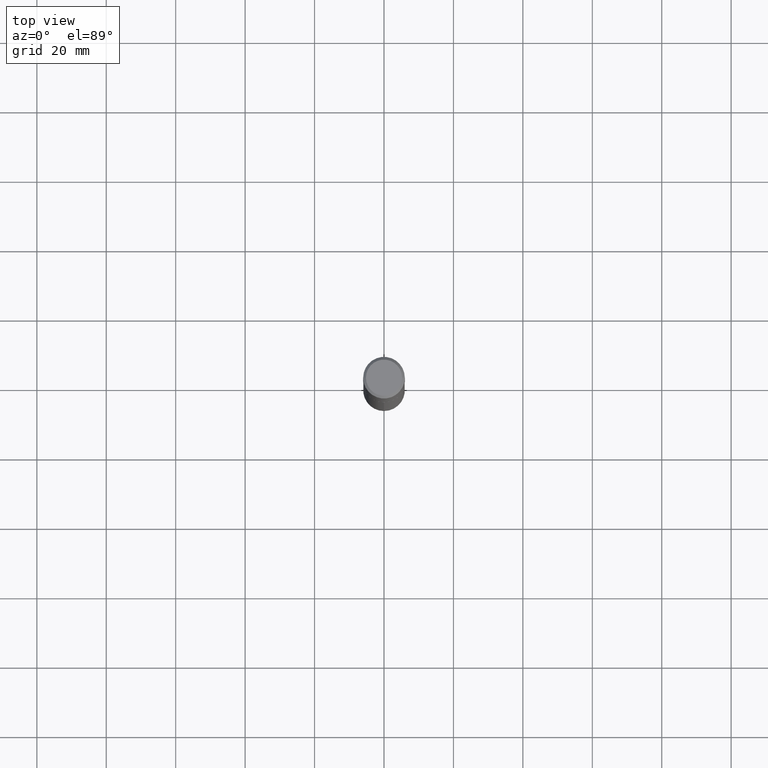
[diagram: clean part render]
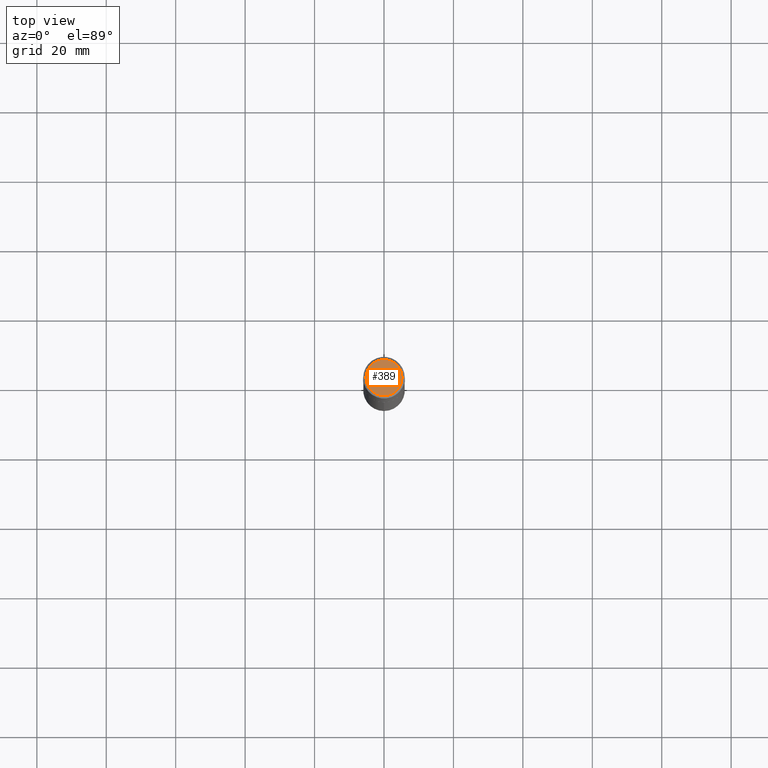
[diagram: same view with one face highlighted and labeled with its STEP entity id]
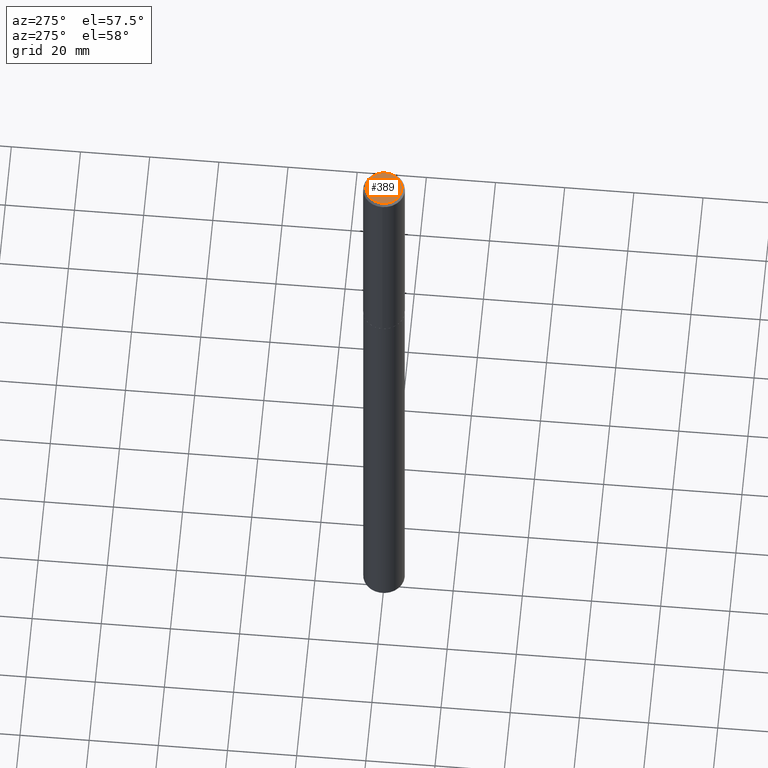
[diagram: same view with one face highlighted and labeled with its STEP entity id]
A machine part, top view. The second image highlights one B-rep face of the part: STEP entity #389.
A second angle (auxiliary view) of the same face is appended — the face is thin or edge-on in the first view.
In plain terms, the highlighted planar face has unit normal (0, -0, -1).
Its self-contained STEP definition (entity closure, byte-faithful):
#4 = FACE_OUTER_BOUND ( 'NONE', #295, .T. ) ;
#48 = CARTESIAN_POINT ( 'NONE',  ( -0.2049499999999999933, 1.485712596711223663E-15, 4.818985154634640807E-18 ) ) ;
#54 = DIRECTION ( 'NONE',  ( 2.438088387897960049E-29, -3.491481338843145188E-15, -1.000000000000000000 ) ) ;
#81 = CARTESIAN_POINT ( 'NONE',  ( -1.178467787315321149E-46, 1.682539673960460649E-32, 4.818985154644839761E-18 ) ) ;
#104 = CIRCLE ( 'NONE', #125, 0.2049499999999999933 ) ;
#109 = CARTESIAN_POINT ( 'NONE',  ( -1.178467787315321149E-46, 1.682539673960460649E-32, 4.818985154644839761E-18 ) ) ;
#115 = DIRECTION ( 'NONE',  ( -2.445468806185136597E-29, 3.491481338843145583E-15, 1.000000000000000000 ) ) ;
#125 = AXIS2_PLACEMENT_3D ( 'NONE', #109, #287, #227 ) ;
#128 = VERTEX_POINT ( 'NONE', #343 ) ;
#160 = ORIENTED_EDGE ( 'NONE', *, *, #250, .T. ) ;
#211 = ORIENTED_EDGE ( 'NONE', *, *, #230, .T. ) ;
#212 = PLANE ( 'NONE',  #335 ) ;
#227 = DIRECTION ( 'NONE',  ( 1.000000000000000000, -6.982962677686266711E-15, 4.876118559169178830E-29 ) ) ;
#229 = DIRECTION ( 'NONE',  ( 1.000000000000000000, -6.982962677686266711E-15, 4.876118559169178830E-29 ) ) ;
#230 = EDGE_CURVE ( 'NONE', #128, #291, #104, .T. ) ;
#236 = DIRECTION ( 'NONE',  ( -1.000000000000000000, 6.982962677686265922E-15, -4.876176775795935793E-29 ) ) ;
#250 = EDGE_CURVE ( 'NONE', #291, #128, #341, .T. ) ;
#283 = AXIS2_PLACEMENT_3D ( 'NONE', #81, #115, #229 ) ;
#287 = DIRECTION ( 'NONE',  ( -2.445468806185136597E-29, 3.491481338843145583E-15, 1.000000000000000000 ) ) ;
#291 = VERTEX_POINT ( 'NONE', #48 ) ;
#295 = EDGE_LOOP ( 'NONE', ( #160, #211 ) ) ;
#331 = CARTESIAN_POINT ( 'NONE',  ( -5.892338936576605744E-47, 8.412698369802303245E-33, 2.409492577322419881E-18 ) ) ;
#335 = AXIS2_PLACEMENT_3D ( 'NONE', #331, #54, #236 ) ;
#341 = CIRCLE ( 'NONE', #283, 0.2049499999999999933 ) ;
#343 = CARTESIAN_POINT ( 'NONE',  ( 0.2049499999999999933, -1.567808741777880040E-15, 4.818985154655325294E-18 ) ) ;
#389 = ADVANCED_FACE ( 'NONE', ( #4 ), #212, .F. ) ;